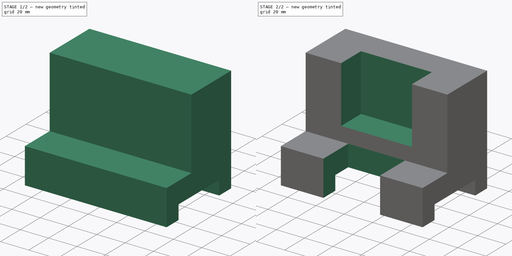
[diagram: build sequence overview — one tinted view per stage of 2, left to right]
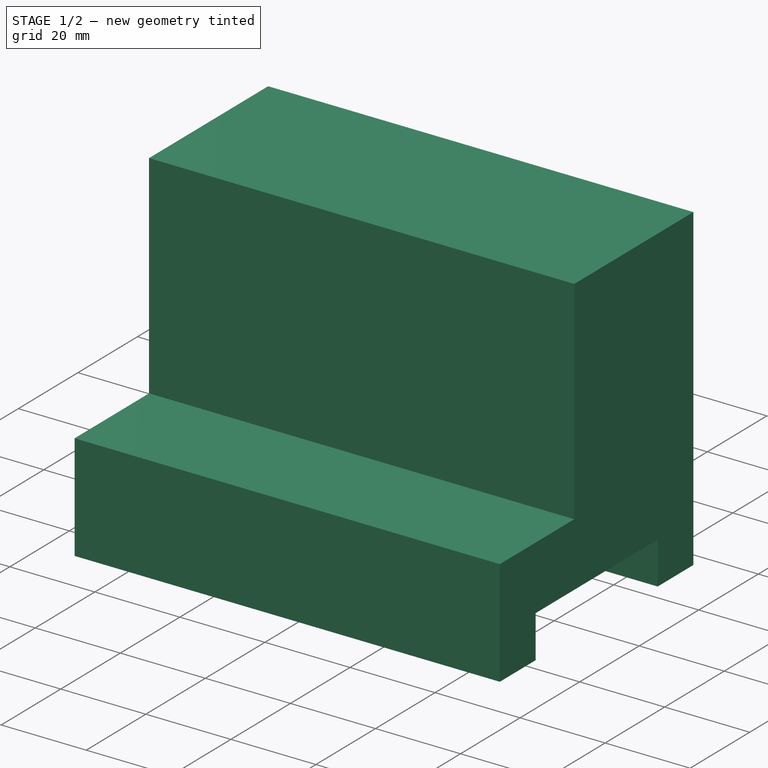
[diagram: stage 1 of 2 — iso view after this stage's code; geometry added in this stage tinted green]
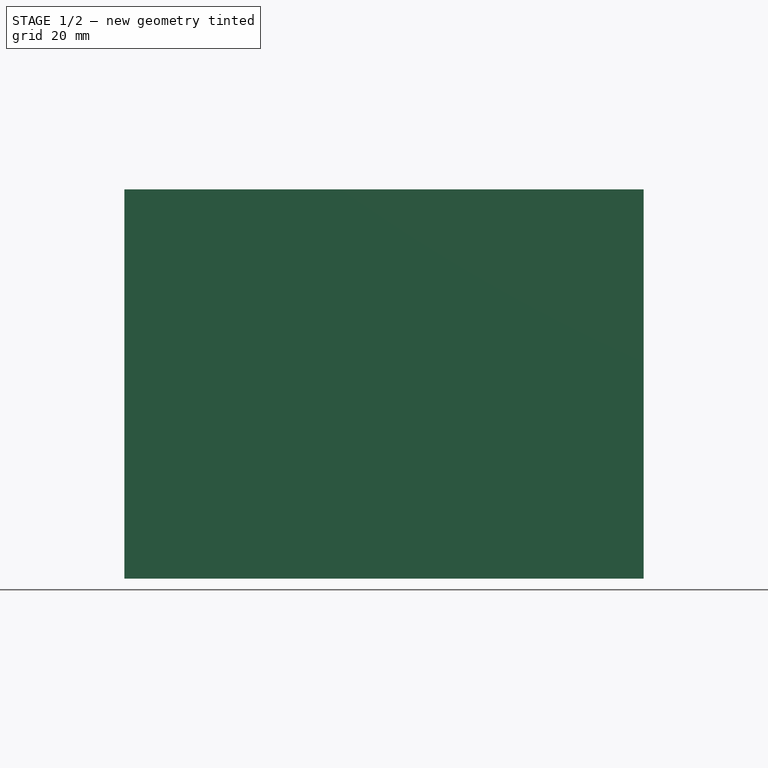
[diagram: stage 1 of 2 — front view after this stage's code; geometry added in this stage tinted green]
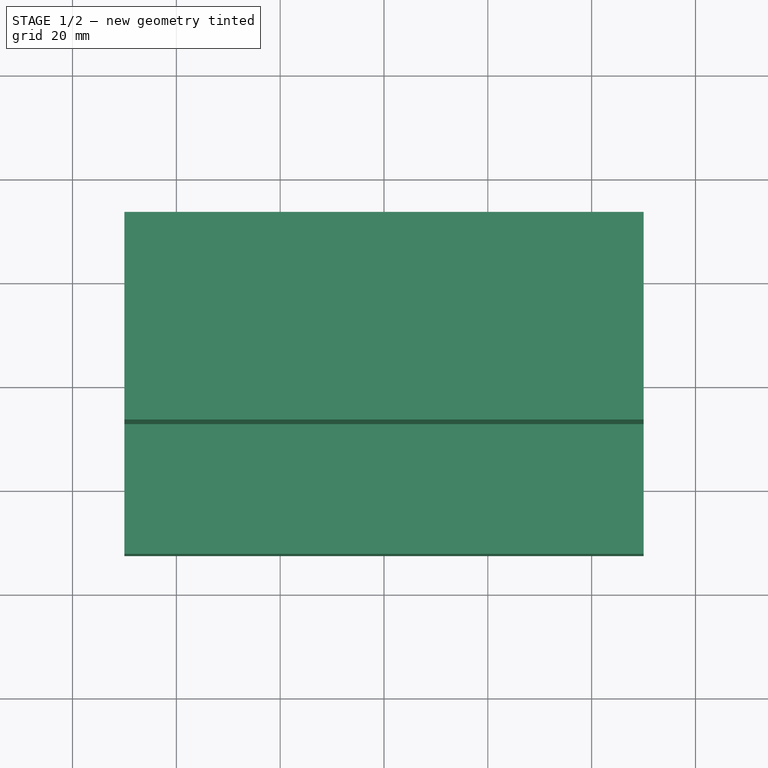
[diagram: stage 1 of 2 — top view after this stage's code; geometry added in this stage tinted green]
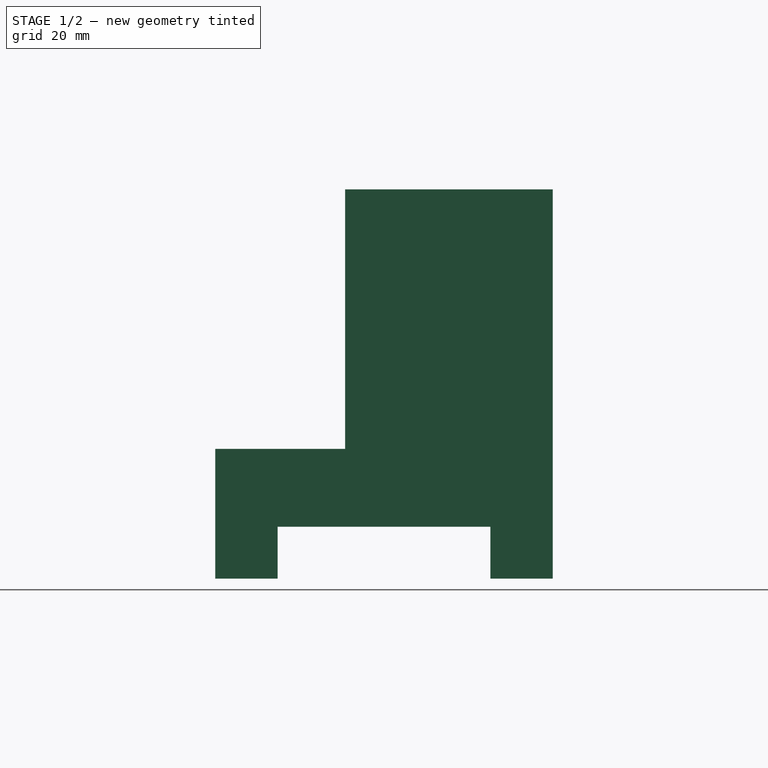
[diagram: stage 1 of 2 — right view after this stage's code; geometry added in this stage tinted green]
FCSTD DOCUMENT  (FreeCAD 0.16R)
Label: Fig 3.24 Final
License: All rights reserved
LicenseURL: http://en.wikipedia.org/wiki/All_rights_reserved
objects: Sketcher::SketchObject×4, PartDesign::Pocket×3, PartDesign::Pad×1
note: 12 computed .brp shape members not serialized (recipe doc carries the construction recipe); baked Part::Feature solids carry a one-line shape summary decoded from their .brp

FEATURE [Sketcher::SketchObject] Sketch
  Placement = pos=(0,0,0) rot=(0.57735,0.57735,0.57735;2.0944rad)
  sketch-geometry (6):
    g0: LineSegment StartX=-32.5 StartY=0 StartZ=0 EndX=32.5 EndY=0 EndZ=0
    g1: LineSegment StartX=32.5 StartY=0 StartZ=0 EndX=32.5 EndY=75 EndZ=0
    g2: LineSegment StartX=32.5 StartY=75 StartZ=0 EndX=-7.5 EndY=75 EndZ=0
    g3: LineSegment StartX=-7.5 StartY=75 StartZ=0 EndX=-7.5 EndY=25 EndZ=0
    g4: LineSegment StartX=-7.5 StartY=25 StartZ=0 EndX=-32.5 EndY=25 EndZ=0
    g5: LineSegment StartX=-32.5 StartY=25 StartZ=0 EndX=-32.5 EndY=0 EndZ=0
  constraints (18):
    c: Horizontal(g0)
    c: Coincident(g0,g1)
    c: Vertical(g1)
    c: Coincident(g1,g2)
    c: Horizontal(g2)
    c: Coincident(g2,g3)
    c: Vertical(g3)
    c: Coincident(g3,g4)
    c: Horizontal(g4)
    c: Coincident(g4,g5)
    c: Coincident(g5,g0)
    c: Vertical(g5)
    c: PointOnObject(g-1,g0)
    c: Symmetric(g0,g0,g-2)
    c: DistanceY(g5,g5) = 25
    c: DistanceX(g4,g4) = 25
    c: DistanceX(g0,g0) = 65
    c: DistanceY(g1,g1) = 75
FEATURE [PartDesign::Pad] Pad
  Length = 100
  Length2 = 100
  Midplane = true
  Placement = pos=(0,0,0) rot=(0.57735,0.57735,0.57735;2.0944rad)
  Sketch = -> Sketch
  Type = 0
FEATURE [Sketcher::SketchObject] Sketch001
  ExternalGeometry = -> [Pad]
  Placement = pos=(50,0,0) rot=(0.57735,0.57735,0.57735;2.0944rad)
  Support = -> Pad [Face8]
  sketch-geometry (4):
    g0: LineSegment StartX=-20.5 StartY=-6.32901 StartZ=0 EndX=20.5 EndY=-6.32901 EndZ=0
    g1: LineSegment StartX=20.5 StartY=-6.32901 StartZ=0 EndX=20.5 EndY=10 EndZ=0
    g2: LineSegment StartX=20.5 StartY=10 StartZ=0 EndX=-20.5 EndY=10 EndZ=0
    g3: LineSegment StartX=-20.5 StartY=10 StartZ=0 EndX=-20.5 EndY=-6.32901 EndZ=0
  constraints (11):
    c: Coincident(g0,g1)
    c: Coincident(g1,g2)
    c: Coincident(g2,g3)
    c: Coincident(g3,g0)
    c: Horizontal(g0)
    c: Horizontal(g2)
    c: Vertical(g1)
    c: Vertical(g3)
    c: DistanceY(g-4,g1) = 10
    c: DistanceX(g1,g-4) = 12
    c: DistanceX(g-3,g2) = 12
FEATURE [PartDesign::Pocket] Pocket
  Length = 5
  Placement = pos=(0,0,0) rot=(0.57735,0.57735,0.57735;2.0944rad)
  Sketch = -> Sketch001
  Type = 1
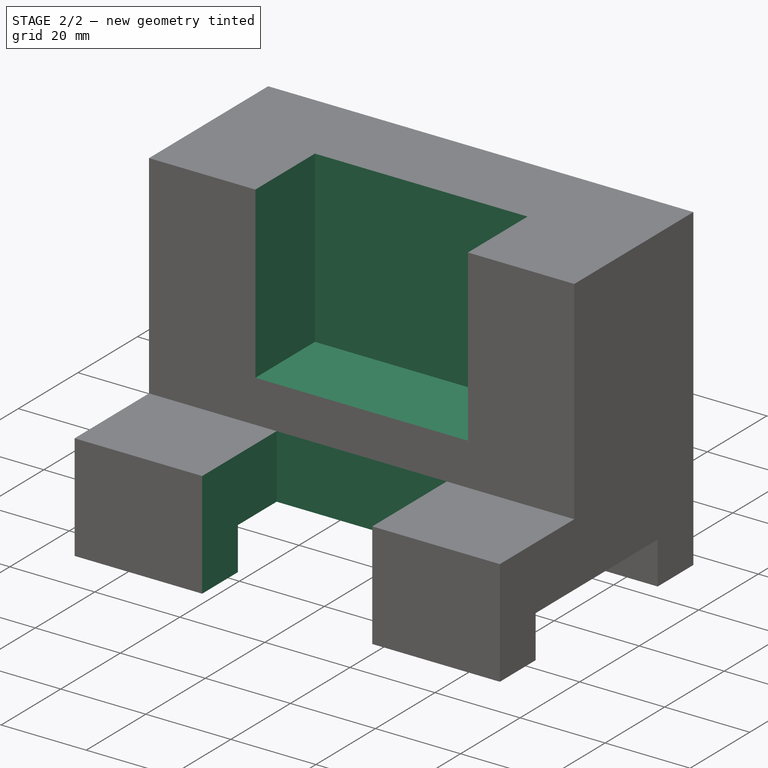
[diagram: stage 2 of 2 — iso view after this stage's code; geometry added in this stage tinted green]
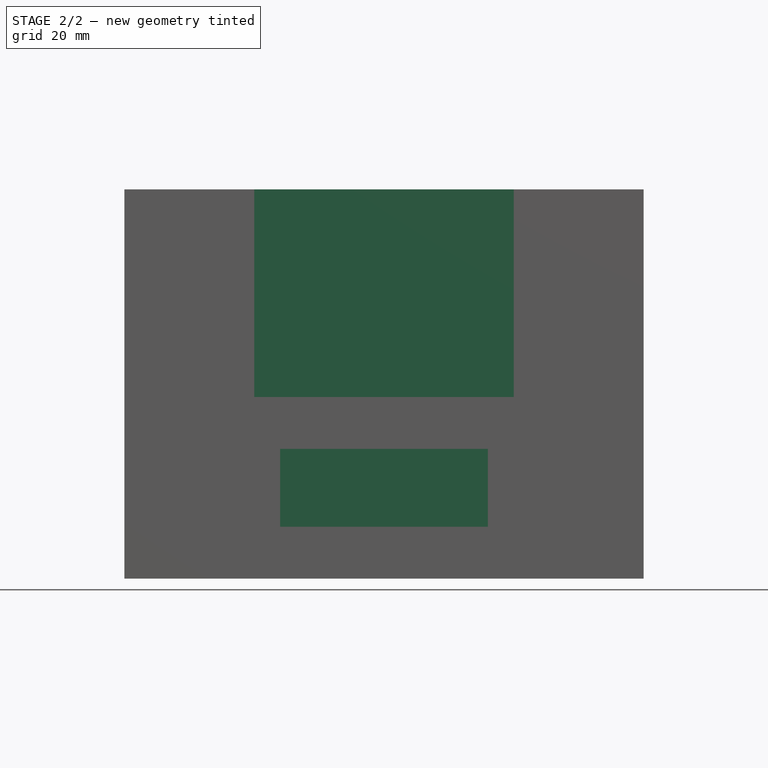
[diagram: stage 2 of 2 — front view after this stage's code; geometry added in this stage tinted green]
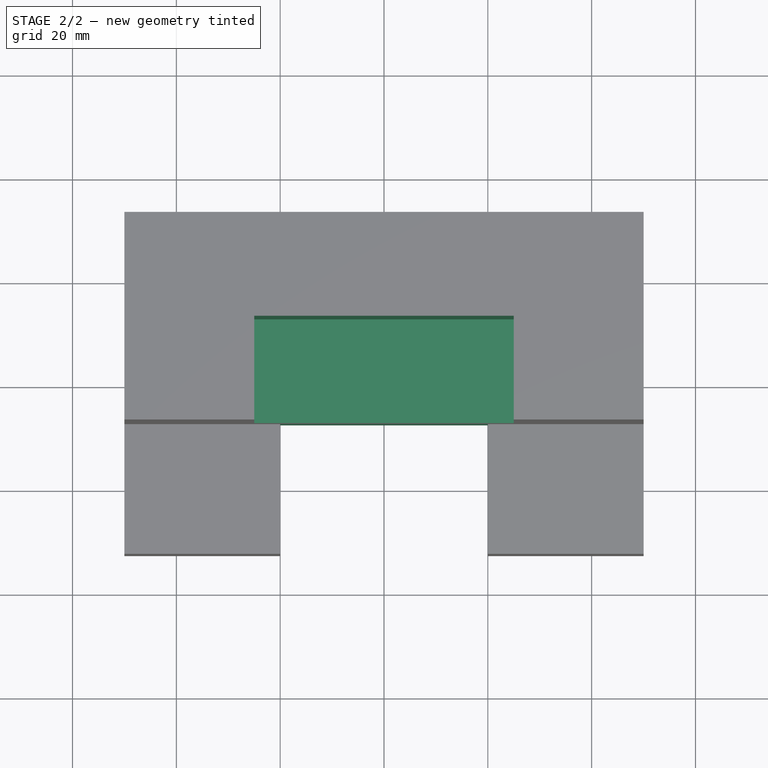
[diagram: stage 2 of 2 — top view after this stage's code; geometry added in this stage tinted green]
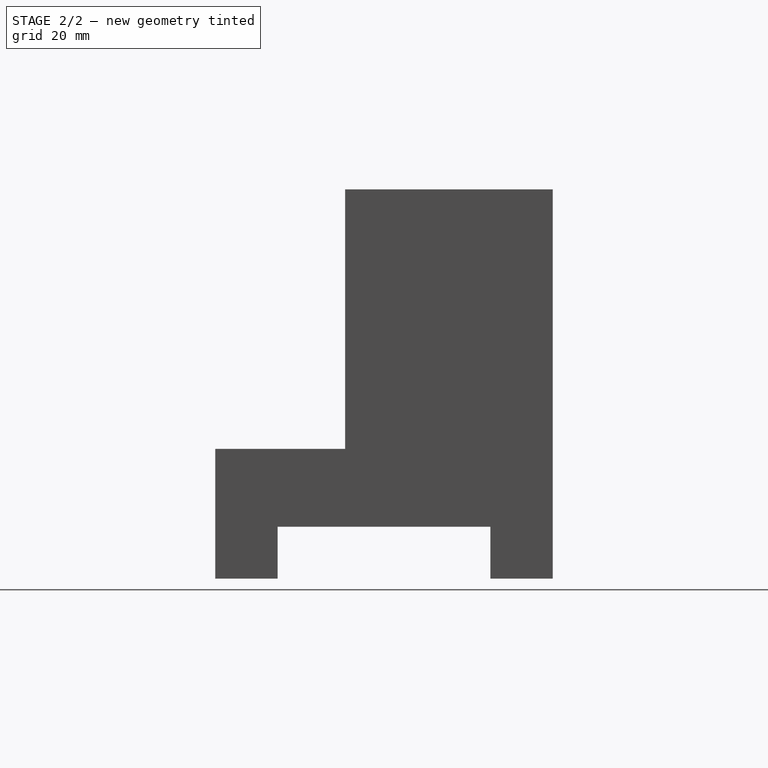
[diagram: stage 2 of 2 — right view after this stage's code; geometry added in this stage tinted green]
FEATURE [Sketcher::SketchObject] Sketch002
  ExternalGeometry = -> [Pocket]
  Placement = pos=(0,-7.5,0) rot=(-0.57735,-0.57735,0.57735;4.18879rad)
  Support = -> Pocket [Face11]
  sketch-geometry (4):
    g0: LineSegment StartX=-86.7501 StartY=25 StartZ=0 EndX=-35 EndY=25 EndZ=0
    g1: LineSegment StartX=-35 StartY=25 StartZ=0 EndX=-35 EndY=-25 EndZ=0
    g2: LineSegment StartX=-35 StartY=-25 StartZ=0 EndX=-86.7501 EndY=-25 EndZ=0
    g3: LineSegment StartX=-86.7501 StartY=-25 StartZ=0 EndX=-86.7501 EndY=25 EndZ=0
  constraints (11):
    c: Coincident(g0,g1)
    c: Coincident(g1,g2)
    c: Coincident(g2,g3)
    c: Coincident(g3,g0)
    c: Horizontal(g0)
    c: Horizontal(g2)
    c: Vertical(g1)
    c: Vertical(g3)
    c: DistanceY(g-3,g1) = 25
    c: DistanceY(g0,g-3) = 25
    c: DistanceX(g-3,g1) = 40
FEATURE [PartDesign::Pocket] Pocket001
  Length = 20
  Placement = pos=(0,0,0) rot=(0.57735,0.57735,0.57735;2.0944rad)
  Sketch = -> Sketch002
  Type = 0
FEATURE [Sketcher::SketchObject] Sketch003
  ExternalGeometry = -> [Pocket001]
  Placement = pos=(0,0,25) rot=(0,0,-1;1.5708rad)
  Support = -> Pocket001 [Face12]
  sketch-geometry (4):
    g0: LineSegment StartX=7.5 StartY=20 StartZ=0 EndX=49.8913 EndY=20 EndZ=0
    g1: LineSegment StartX=49.8913 StartY=20 StartZ=0 EndX=49.8913 EndY=-20 EndZ=0
    g2: LineSegment StartX=49.8913 StartY=-20 StartZ=0 EndX=7.5 EndY=-20 EndZ=0
    g3: LineSegment StartX=7.5 StartY=-20 StartZ=0 EndX=7.5 EndY=20 EndZ=0
  constraints (11):
    c: Coincident(g0,g1)
    c: Coincident(g1,g2)
    c: Coincident(g2,g3)
    c: Coincident(g3,g0)
    c: Horizontal(g0)
    c: Horizontal(g2)
    c: Vertical(g1)
    c: Vertical(g3)
    c: DistanceX(g-4,g0) = 0
    c: DistanceY(g1,g0) = 40
    c: Symmetric(g1,g0,g-1)
FEATURE [PartDesign::Pocket] Pocket002
  Length = 5
  Placement = pos=(0,0,0) rot=(0.57735,0.57735,0.57735;2.0944rad)
  Sketch = -> Sketch003
  Type = 1
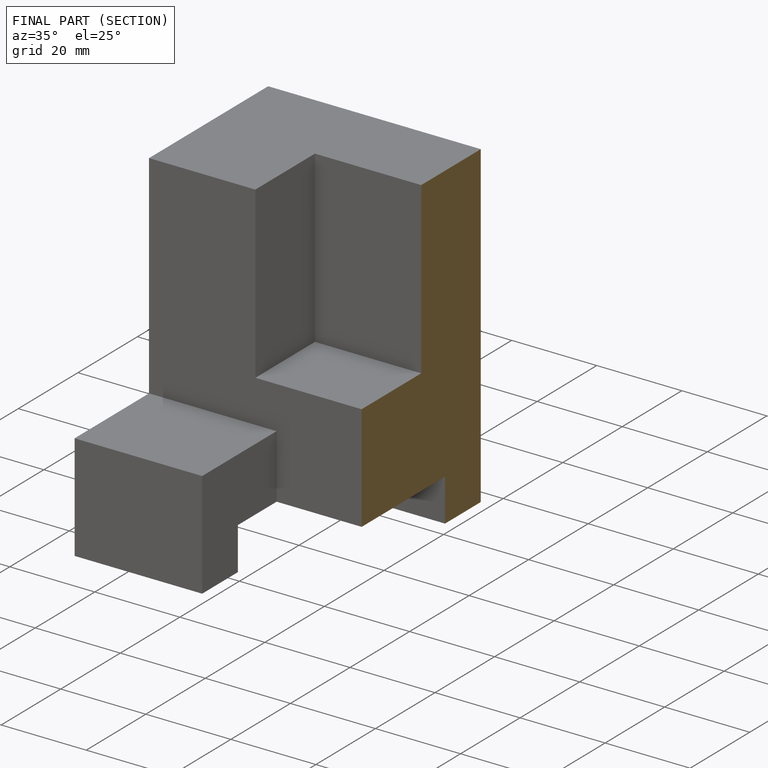
[diagram: finished part — half-section view (interior)]
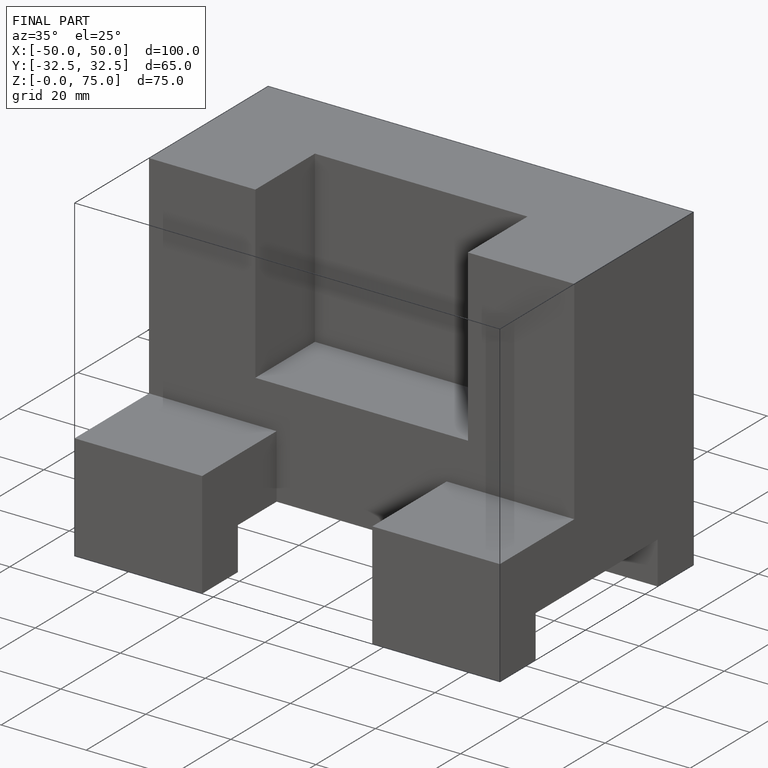
[diagram: finished part — iso view with bounding-box wireframe]
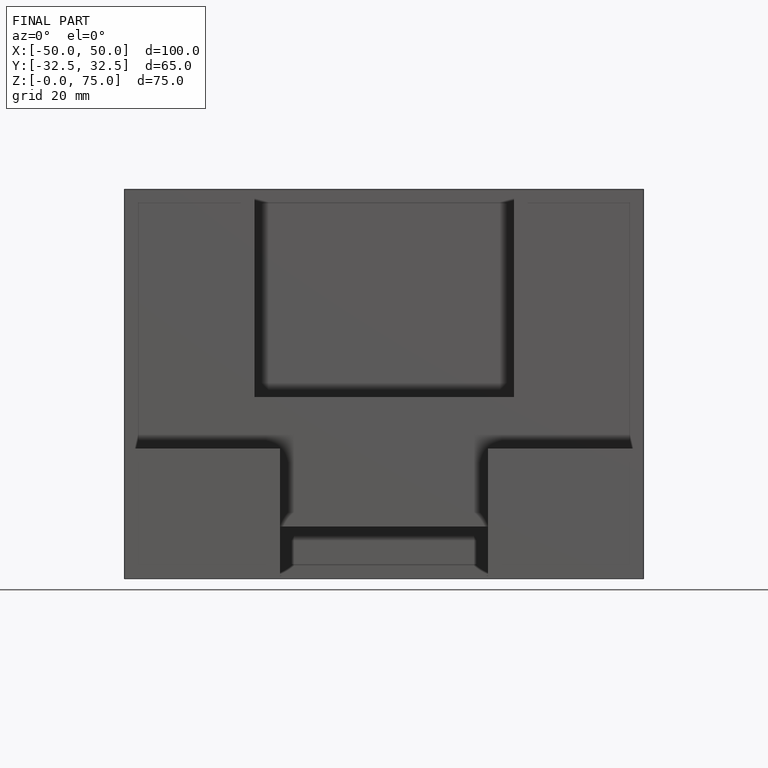
[diagram: finished part — front view with bounding-box wireframe]
